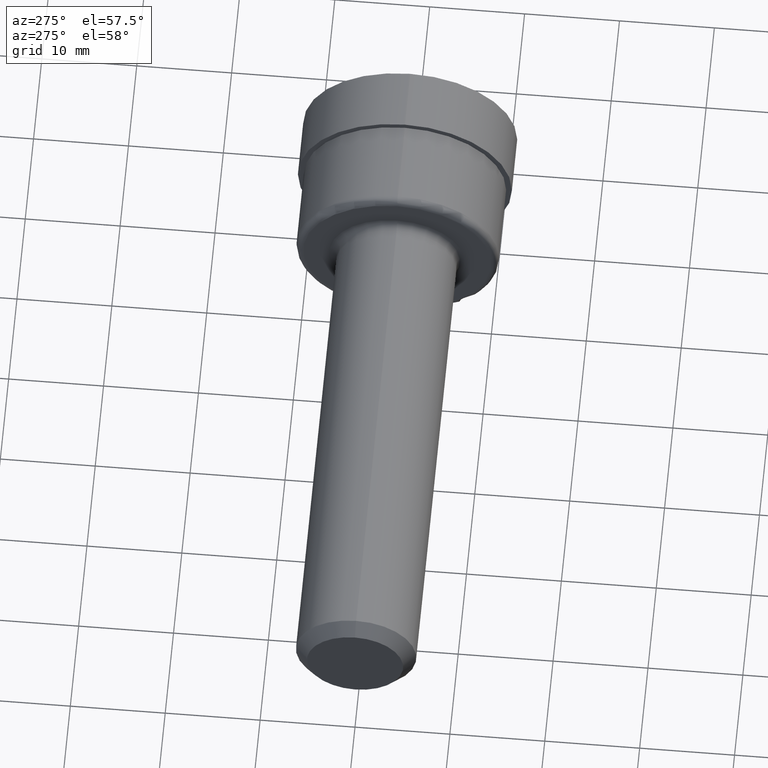
[diagram: clean part render]
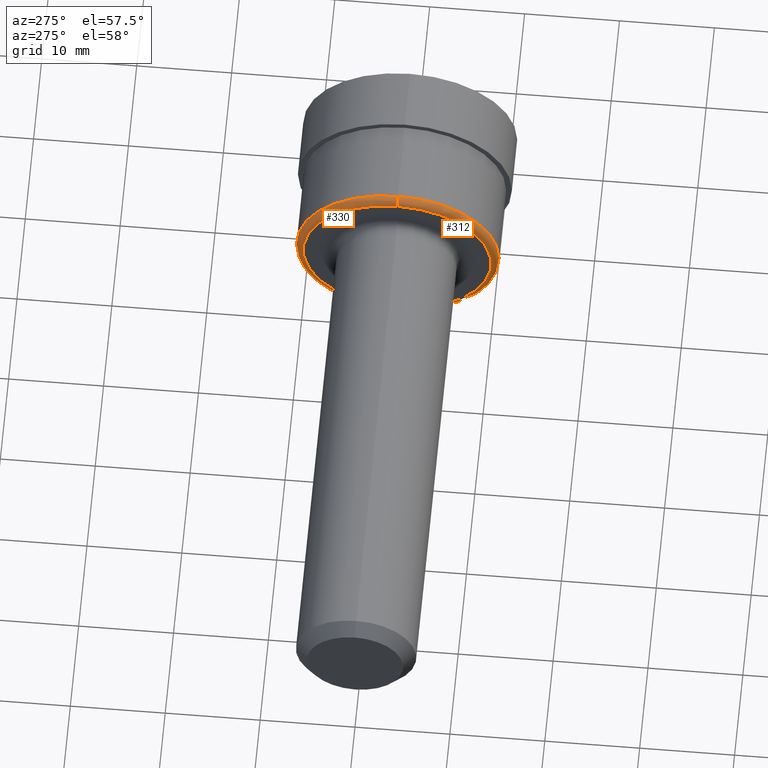
[diagram: same view with one multi-face feature highlighted, each face labeled with its STEP entity id]
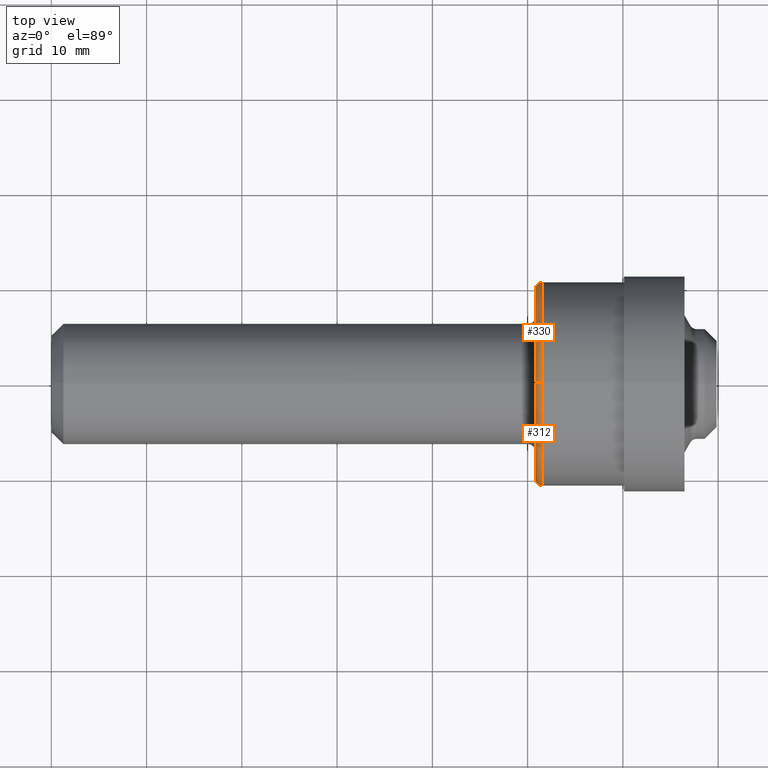
[diagram: same view with one multi-face feature highlighted, each face labeled with its STEP entity id]
A machine part, auxiliary view. The highlighted faces form ONE feature: a constant-radius fillet chain: 2 tangent blend faces with common blend radius 0.762 mm. The faces share edges in the B-rep.
A second angle (top view) of the same feature is appended — it is thin or edge-on in the first view.
Their STEP definitions:
[1] entity #312 (Torus):
#22 = ORIENTED_EDGE ( 'NONE', *, *, #404, .F. ) ;
#41 = DIRECTION ( 'NONE',  ( -0.000000000000000000, 1.000000000000000000, 1.224646799147353207E-16 ) ) ;
#46 = CARTESIAN_POINT ( 'NONE',  ( 2.029999999999999805, 0.000000000000000000, 0.000000000000000000 ) ) ;
#57 = AXIS2_PLACEMENT_3D ( 'NONE', #565, #459, #232 ) ;
#87 = DIRECTION ( 'NONE',  ( -1.000000000000000000, -0.000000000000000000, -0.000000000000000000 ) ) ;
#99 = DIRECTION ( 'NONE',  ( 0.000000000000000000, -1.224646799147354933E-16, 1.000000000000000000 ) ) ;
#106 = TOROIDAL_SURFACE ( 'NONE', #495, 0.3899999999999999578, 0.02999999999999998848 ) ;
#119 = DIRECTION ( 'NONE',  ( 0.000000000000000000, 0.000000000000000000, 1.000000000000000000 ) ) ;
#120 = CIRCLE ( 'NONE', #517, 0.4199999999999998734 ) ;
#130 = VERTEX_POINT ( 'NONE', #607 ) ;
#163 = CARTESIAN_POINT ( 'NONE',  ( 2.000000000000000000, 0.000000000000000000, 0.3899999999999999578 ) ) ;
#177 = CIRCLE ( 'NONE', #538, 0.02999999999999995379 ) ;
#182 = VERTEX_POINT ( 'NONE', #163 ) ;
#186 = AXIS2_PLACEMENT_3D ( 'NONE', #222, #458, #614 ) ;
#190 = CIRCLE ( 'NONE', #57, 0.3899999999999999578 ) ;
#197 = CARTESIAN_POINT ( 'NONE',  ( 2.029999999999999805, 0.000000000000000000, 0.4199999999999998734 ) ) ;
#222 = CARTESIAN_POINT ( 'NONE',  ( 2.029999999999999805, 0.000000000000000000, 0.3899999999999999578 ) ) ;
#226 = DIRECTION ( 'NONE',  ( -1.000000000000000000, -0.000000000000000000, -0.000000000000000000 ) ) ;
#232 = DIRECTION ( 'NONE',  ( 0.000000000000000000, 0.000000000000000000, 1.000000000000000000 ) ) ;
#234 = FACE_OUTER_BOUND ( 'NONE', #668, .T. ) ;
#235 = ORIENTED_EDGE ( 'NONE', *, *, #560, .T. ) ;
#249 = DIRECTION ( 'NONE',  ( 0.000000000000000000, 0.000000000000000000, 1.000000000000000000 ) ) ;
#288 = ORIENTED_EDGE ( 'NONE', *, *, #304, .F. ) ;
#292 = CARTESIAN_POINT ( 'NONE',  ( 2.029999999999999805, 0.000000000000000000, 0.000000000000000000 ) ) ;
#304 = EDGE_CURVE ( 'NONE', #576, #182, #190, .T. ) ;
#312 = ADVANCED_FACE ( 'NONE', ( #234 ), #106, .T. ) ;
#355 = ORIENTED_EDGE ( 'NONE', *, *, #627, .T. ) ;
#404 = EDGE_CURVE ( 'NONE', #130, #576, #177, .T. ) ;
#458 = DIRECTION ( 'NONE',  ( 0.000000000000000000, -1.000000000000000000, 0.000000000000000000 ) ) ;
#459 = DIRECTION ( 'NONE',  ( -1.000000000000000000, -0.000000000000000000, -0.000000000000000000 ) ) ;
#492 = VERTEX_POINT ( 'NONE', #197 ) ;
#495 = AXIS2_PLACEMENT_3D ( 'NONE', #292, #226, #119 ) ;
#516 = CIRCLE ( 'NONE', #186, 0.02999999999999995379 ) ;
#517 = AXIS2_PLACEMENT_3D ( 'NONE', #46, #87, #249 ) ;
#538 = AXIS2_PLACEMENT_3D ( 'NONE', #634, #41, #99 ) ;
#560 = EDGE_CURVE ( 'NONE', #130, #492, #120, .T. ) ;
#565 = CARTESIAN_POINT ( 'NONE',  ( 2.000000000000000000, 0.000000000000000000, 0.000000000000000000 ) ) ;
#576 = VERTEX_POINT ( 'NONE', #631 ) ;
#607 = CARTESIAN_POINT ( 'NONE',  ( 2.029999999999999805, 5.143516556418881942E-17, -0.4199999999999998734 ) ) ;
#614 = DIRECTION ( 'NONE',  ( 0.000000000000000000, 0.000000000000000000, -1.000000000000000000 ) ) ;
#627 = EDGE_CURVE ( 'NONE', #492, #182, #516, .T. ) ;
#631 = CARTESIAN_POINT ( 'NONE',  ( 2.000000000000000000, 4.959819536546778751E-17, -0.3899999999999999578 ) ) ;
#634 = CARTESIAN_POINT ( 'NONE',  ( 2.029999999999999805, 4.776122516674676793E-17, -0.3899999999999999578 ) ) ;
#668 = EDGE_LOOP ( 'NONE', ( #22, #235, #355, #288 ) ) ;
[2] entity #330 (Torus):
#10 = EDGE_CURVE ( 'NONE', #492, #130, #298, .T. ) ;
#33 = DIRECTION ( 'NONE',  ( -1.000000000000000000, -0.000000000000000000, -0.000000000000000000 ) ) ;
#41 = DIRECTION ( 'NONE',  ( -0.000000000000000000, 1.000000000000000000, 1.224646799147353207E-16 ) ) ;
#94 = DIRECTION ( 'NONE',  ( -1.000000000000000000, -0.000000000000000000, -0.000000000000000000 ) ) ;
#99 = DIRECTION ( 'NONE',  ( 0.000000000000000000, -1.224646799147354933E-16, 1.000000000000000000 ) ) ;
#125 = ORIENTED_EDGE ( 'NONE', *, *, #10, .T. ) ;
#130 = VERTEX_POINT ( 'NONE', #607 ) ;
#163 = CARTESIAN_POINT ( 'NONE',  ( 2.000000000000000000, 0.000000000000000000, 0.3899999999999999578 ) ) ;
#172 = EDGE_CURVE ( 'NONE', #182, #576, #346, .T. ) ;
#177 = CIRCLE ( 'NONE', #538, 0.02999999999999995379 ) ;
#182 = VERTEX_POINT ( 'NONE', #163 ) ;
#186 = AXIS2_PLACEMENT_3D ( 'NONE', #222, #458, #614 ) ;
#197 = CARTESIAN_POINT ( 'NONE',  ( 2.029999999999999805, 0.000000000000000000, 0.4199999999999998734 ) ) ;
#222 = CARTESIAN_POINT ( 'NONE',  ( 2.029999999999999805, 0.000000000000000000, 0.3899999999999999578 ) ) ;
#253 = AXIS2_PLACEMENT_3D ( 'NONE', #318, #596, #603 ) ;
#286 = ORIENTED_EDGE ( 'NONE', *, *, #172, .F. ) ;
#298 = CIRCLE ( 'NONE', #474, 0.4199999999999998734 ) ;
#305 = DIRECTION ( 'NONE',  ( 0.000000000000000000, 0.000000000000000000, 1.000000000000000000 ) ) ;
#318 = CARTESIAN_POINT ( 'NONE',  ( 2.000000000000000000, 0.000000000000000000, 0.000000000000000000 ) ) ;
#330 = ADVANCED_FACE ( 'NONE', ( #405 ), #451, .T. ) ;
#346 = CIRCLE ( 'NONE', #253, 0.3899999999999999578 ) ;
#404 = EDGE_CURVE ( 'NONE', #130, #576, #177, .T. ) ;
#405 = FACE_OUTER_BOUND ( 'NONE', #673, .T. ) ;
#449 = DIRECTION ( 'NONE',  ( 0.000000000000000000, 0.000000000000000000, 1.000000000000000000 ) ) ;
#450 = ORIENTED_EDGE ( 'NONE', *, *, #404, .T. ) ;
#451 = TOROIDAL_SURFACE ( 'NONE', #548, 0.3899999999999999578, 0.02999999999999998848 ) ;
#458 = DIRECTION ( 'NONE',  ( 0.000000000000000000, -1.000000000000000000, 0.000000000000000000 ) ) ;
#468 = CARTESIAN_POINT ( 'NONE',  ( 2.029999999999999805, 0.000000000000000000, 0.000000000000000000 ) ) ;
#474 = AXIS2_PLACEMENT_3D ( 'NONE', #468, #94, #305 ) ;
#492 = VERTEX_POINT ( 'NONE', #197 ) ;
#500 = ORIENTED_EDGE ( 'NONE', *, *, #627, .F. ) ;
#513 = CARTESIAN_POINT ( 'NONE',  ( 2.029999999999999805, 0.000000000000000000, 0.000000000000000000 ) ) ;
#516 = CIRCLE ( 'NONE', #186, 0.02999999999999995379 ) ;
#538 = AXIS2_PLACEMENT_3D ( 'NONE', #634, #41, #99 ) ;
#548 = AXIS2_PLACEMENT_3D ( 'NONE', #513, #33, #449 ) ;
#576 = VERTEX_POINT ( 'NONE', #631 ) ;
#596 = DIRECTION ( 'NONE',  ( -1.000000000000000000, -0.000000000000000000, -0.000000000000000000 ) ) ;
#603 = DIRECTION ( 'NONE',  ( 0.000000000000000000, 0.000000000000000000, 1.000000000000000000 ) ) ;
#607 = CARTESIAN_POINT ( 'NONE',  ( 2.029999999999999805, 5.143516556418881942E-17, -0.4199999999999998734 ) ) ;
#614 = DIRECTION ( 'NONE',  ( 0.000000000000000000, 0.000000000000000000, -1.000000000000000000 ) ) ;
#627 = EDGE_CURVE ( 'NONE', #492, #182, #516, .T. ) ;
#631 = CARTESIAN_POINT ( 'NONE',  ( 2.000000000000000000, 4.959819536546778751E-17, -0.3899999999999999578 ) ) ;
#634 = CARTESIAN_POINT ( 'NONE',  ( 2.029999999999999805, 4.776122516674676793E-17, -0.3899999999999999578 ) ) ;
#673 = EDGE_LOOP ( 'NONE', ( #125, #450, #286, #500 ) ) ;